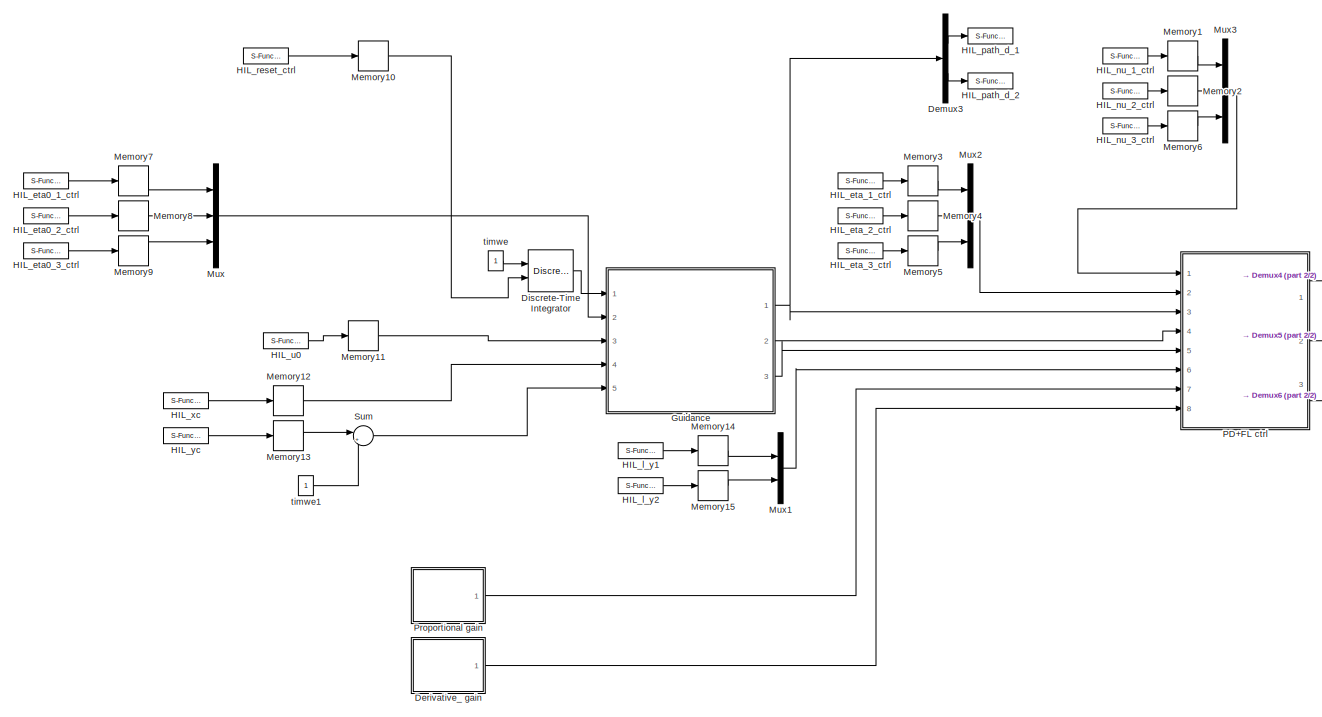
[diagram: root canvas - part 1/2, most of the canvas]
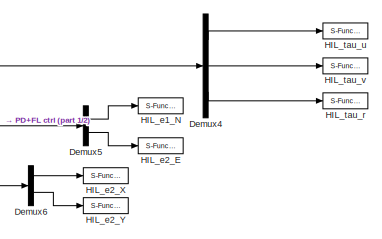
[diagram: root canvas - part 2/2, middle right region]
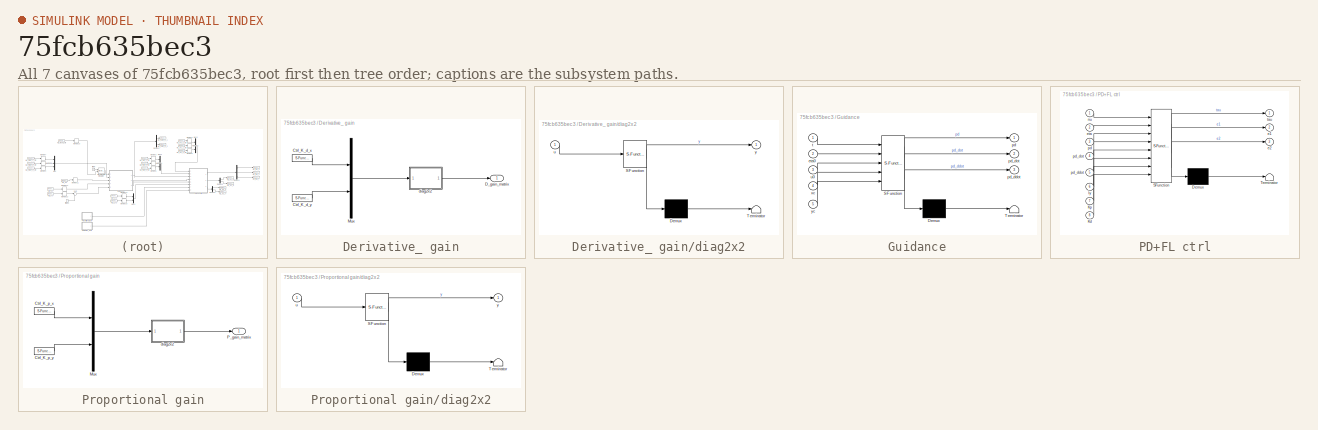
[diagram: thumbnail index - all 7 canvases of the model, root first then tree order]
MODEL slx_75fcb635bec3
KIND model
BLOCK [Demux] Demux3
  DisplayOption = bar
  Outputs = 2
  Ports = [1, 2]
BLOCK [Demux] Demux4
  DisplayOption = bar
  Outputs = 3
  Ports = [1, 3]
BLOCK [Demux] Demux5
  DisplayOption = bar
  Outputs = 2
  Ports = [1, 2]
BLOCK [Demux] Demux6
  DisplayOption = bar
  Outputs = 2
  Ports = [1, 2]
BLOCK [SubSystem] Derivative_ gain
  Ports = [0, 1]
  RequestExecContextInheritance = off
BLOCK [S-Function] Derivative_ gain/Ctrl_K_d_x
  CopyFcn = NIVeriStand_MDL_functions('', 'IO_copy');
  DeleteFcn = NIVeriStand_MDL_functions('', 'IO_delete');
  EnableBusSupport = off
  FunctionName = NIVeriStandIO
  MoveFcn = set_param(gcb, 'Mask', 'on');
  Parameters = width dtype portnum stime stype btype
  Ports = [0, 1]
  Priority = 1
BLOCK [S-Function] Derivative_ gain/Ctrl_K_d_y
  CopyFcn = NIVeriStand_MDL_functions('', 'IO_copy');
  DeleteFcn = NIVeriStand_MDL_functions('', 'IO_delete');
  EnableBusSupport = off
  FunctionName = NIVeriStandIO
  MoveFcn = set_param(gcb, 'Mask', 'on');
  Parameters = width dtype portnum stime stype btype
  Ports = [0, 1]
  Priority = 2
BLOCK [Outport] Derivative_ gain/D_gain_matrix
  IconDisplay = Port number
BLOCK [Mux] Derivative_ gain/Mux
  DisplayOption = bar
  Inputs = 2
  Ports = [2, 1]
BLOCK [SubSystem] Derivative_ gain/diag2x2
  ErrorFcn = Stateflow.Translate.translate
  PermitHierarchicalResolution = ExplicitOnly
  Ports = [1, 1]
  RequestExecContextInheritance = off
  SFBlockType = MATLAB Function
  TreatAsAtomicUnit = on
BLOCK [Demux] Derivative_ gain/diag2x2/ Demux 
  Outputs = 1
  Ports = [1, 1]
BLOCK [S-Function] Derivative_ gain/diag2x2/ SFunction 
  EnableBusSupport = on
  FunctionName = sf_sfun
  PortCounts = [1 2]
  Ports = [1, 2]
  Tag = Stateflow S-Function ctrl_internal_dynamics 7
BLOCK [Terminator] Derivative_ gain/diag2x2/ Terminator 
BLOCK [Inport] Derivative_ gain/diag2x2/u
  IconDisplay = Port number
BLOCK [Outport] Derivative_ gain/diag2x2/y
  IconDisplay = Port number
BLOCK [DiscreteIntegrator] Discrete-Time Integrator
  ExternalReset = rising
  ICPrevOutput = DiscIntNeverNeededParam
  ICPrevScaledInput = DiscIntNeverNeededParam
  Ports = [2, 1]
  SampleTime = 0.01
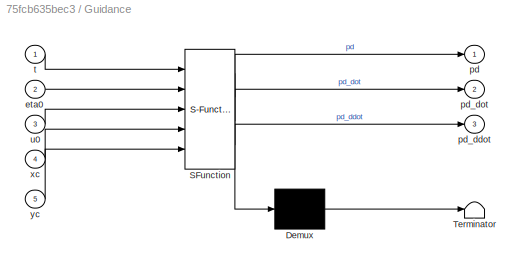
BLOCK [SubSystem] Guidance
  ErrorFcn = Stateflow.Translate.translate
  PermitHierarchicalResolution = ExplicitOnly
  Ports = [5, 3]
  RequestExecContextInheritance = off
  SFBlockType = MATLAB Function
  TreatAsAtomicUnit = on
BLOCK [Demux] Guidance/ Demux 
  Outputs = 1
  Ports = [1, 1]
BLOCK [S-Function] Guidance/ SFunction 
  EnableBusSupport = on
  FunctionName = sf_sfun
  PortCounts = [5 4]
  Ports = [5, 4]
  Tag = Stateflow S-Function ctrl_internal_dynamics 4
BLOCK [Terminator] Guidance/ Terminator 
BLOCK [Inport] Guidance/eta0
  IconDisplay = Port number
  Port = 2
BLOCK [Outport] Guidance/pd
  IconDisplay = Port number
BLOCK [Outport] Guidance/pd_ddot
  IconDisplay = Port number
  Port = 3
BLOCK [Outport] Guidance/pd_dot
  IconDisplay = Port number
  Port = 2
BLOCK [Inport] Guidance/t
  IconDisplay = Port number
BLOCK [Inport] Guidance/u0
  IconDisplay = Port number
  Port = 3
BLOCK [Inport] Guidance/xc
  IconDisplay = Port number
  Port = 4
BLOCK [Inport] Guidance/yc
  IconDisplay = Port number
  Port = 5
BLOCK [S-Function] HIL_e1_N
  CopyFcn = NIVeriStand_MDL_functions('', 'IO_copy');
  DeleteFcn = NIVeriStand_MDL_functions('', 'IO_delete');
  EnableBusSupport = off
  FunctionName = NIVeriStandIO
  MoveFcn = set_param(gcb, 'Mask', 'on');
  Parameters = width dtype portnum stime stype btype
  Ports = [1]
  Priority = 1
BLOCK [S-Function] HIL_e2_E
  CopyFcn = NIVeriStand_MDL_functions('', 'IO_copy');
  DeleteFcn = NIVeriStand_MDL_functions('', 'IO_delete');
  EnableBusSupport = off
  FunctionName = NIVeriStandIO
  MoveFcn = set_param(gcb, 'Mask', 'on');
  Parameters = width dtype portnum stime stype btype
  Ports = [1]
  Priority = 2
BLOCK [S-Function] HIL_e2_X
  CopyFcn = NIVeriStand_MDL_functions('', 'IO_copy');
  DeleteFcn = NIVeriStand_MDL_functions('', 'IO_delete');
  EnableBusSupport = off
  FunctionName = NIVeriStandIO
  MoveFcn = set_param(gcb, 'Mask', 'on');
  Parameters = width dtype portnum stime stype btype
  Ports = [1]
  Priority = 3
BLOCK [S-Function] HIL_e2_Y
  CopyFcn = NIVeriStand_MDL_functions('', 'IO_copy');
  DeleteFcn = NIVeriStand_MDL_functions('', 'IO_delete');
  EnableBusSupport = off
  FunctionName = NIVeriStandIO
  MoveFcn = set_param(gcb, 'Mask', 'on');
  Parameters = width dtype portnum stime stype btype
  Ports = [1]
  Priority = 4
BLOCK [S-Function] HIL_eta0_1_ctrl
  CopyFcn = NIVeriStand_MDL_functions('', 'IO_copy');
  DeleteFcn = NIVeriStand_MDL_functions('', 'IO_delete');
  EnableBusSupport = off
  FunctionName = NIVeriStandIO
  MoveFcn = set_param(gcb, 'Mask', 'on');
  Parameters = width dtype portnum stime stype btype
  Ports = [0, 1]
  Priority = 1
BLOCK [S-Function] HIL_eta0_2_ctrl
  CopyFcn = NIVeriStand_MDL_functions('', 'IO_copy');
  DeleteFcn = NIVeriStand_MDL_functions('', 'IO_delete');
  EnableBusSupport = off
  FunctionName = NIVeriStandIO
  MoveFcn = set_param(gcb, 'Mask', 'on');
  Parameters = width dtype portnum stime stype btype
  Ports = [0, 1]
  Priority = 2
BLOCK [S-Function] HIL_eta0_3_ctrl
  CopyFcn = NIVeriStand_MDL_functions('', 'IO_copy');
  DeleteFcn = NIVeriStand_MDL_functions('', 'IO_delete');
  EnableBusSupport = off
  FunctionName = NIVeriStandIO
  MoveFcn = set_param(gcb, 'Mask', 'on');
  Parameters = width dtype portnum stime stype btype
  Ports = [0, 1]
  Priority = 3
BLOCK [S-Function] HIL_eta_1_ctrl
  CopyFcn = NIVeriStand_MDL_functions('', 'IO_copy');
  DeleteFcn = NIVeriStand_MDL_functions('', 'IO_delete');
  EnableBusSupport = off
  FunctionName = NIVeriStandIO
  MoveFcn = set_param(gcb, 'Mask', 'on');
  Parameters = width dtype portnum stime stype btype
  Ports = [0, 1]
  Priority = 10
BLOCK [S-Function] HIL_eta_2_ctrl
  CopyFcn = NIVeriStand_MDL_functions('', 'IO_copy');
  DeleteFcn = NIVeriStand_MDL_functions('', 'IO_delete');
  EnableBusSupport = off
  FunctionName = NIVeriStandIO
  MoveFcn = set_param(gcb, 'Mask', 'on');
  Parameters = width dtype portnum stime stype btype
  Ports = [0, 1]
  Priority = 11
BLOCK [S-Function] HIL_eta_3_ctrl
  CopyFcn = NIVeriStand_MDL_functions('', 'IO_copy');
  DeleteFcn = NIVeriStand_MDL_functions('', 'IO_delete');
  EnableBusSupport = off
  FunctionName = NIVeriStandIO
  MoveFcn = set_param(gcb, 'Mask', 'on');
  Parameters = width dtype portnum stime stype btype
  Ports = [0, 1]
  Priority = 12
BLOCK [S-Function] HIL_l_y1
  CopyFcn = NIVeriStand_MDL_functions('', 'IO_copy');
  DeleteFcn = NIVeriStand_MDL_functions('', 'IO_delete');
  EnableBusSupport = off
  FunctionName = NIVeriStandIO
  MoveFcn = set_param(gcb, 'Mask', 'on');
  Parameters = width dtype portnum stime stype btype
  Ports = [0, 1]
  Priority = 5
BLOCK [S-Function] HIL_l_y2
  CopyFcn = NIVeriStand_MDL_functions('', 'IO_copy');
  DeleteFcn = NIVeriStand_MDL_functions('', 'IO_delete');
  EnableBusSupport = off
  FunctionName = NIVeriStandIO
  MoveFcn = set_param(gcb, 'Mask', 'on');
  Parameters = width dtype portnum stime stype btype
  Ports = [0, 1]
  Priority = 6
BLOCK [S-Function] HIL_nu_1_ctrl
  CopyFcn = NIVeriStand_MDL_functions('', 'IO_copy');
  DeleteFcn = NIVeriStand_MDL_functions('', 'IO_delete');
  EnableBusSupport = off
  FunctionName = NIVeriStandIO
  MoveFcn = set_param(gcb, 'Mask', 'on');
  Parameters = width dtype portnum stime stype btype
  Ports = [0, 1]
  Priority = 13
BLOCK [S-Function] HIL_nu_2_ctrl
  CopyFcn = NIVeriStand_MDL_functions('', 'IO_copy');
  DeleteFcn = NIVeriStand_MDL_functions('', 'IO_delete');
  EnableBusSupport = off
  FunctionName = NIVeriStandIO
  MoveFcn = set_param(gcb, 'Mask', 'on');
  Parameters = width dtype portnum stime stype btype
  Ports = [0, 1]
  Priority = 14
BLOCK [S-Function] HIL_nu_3_ctrl
  CopyFcn = NIVeriStand_MDL_functions('', 'IO_copy');
  DeleteFcn = NIVeriStand_MDL_functions('', 'IO_delete');
  EnableBusSupport = off
  FunctionName = NIVeriStandIO
  MoveFcn = set_param(gcb, 'Mask', 'on');
  Parameters = width dtype portnum stime stype btype
  Ports = [0, 1]
  Priority = 15
BLOCK [S-Function] HIL_path_d_1
  CopyFcn = NIVeriStand_MDL_functions('', 'IO_copy');
  DeleteFcn = NIVeriStand_MDL_functions('', 'IO_delete');
  EnableBusSupport = off
  FunctionName = NIVeriStandIO
  MoveFcn = set_param(gcb, 'Mask', 'on');
  Parameters = width dtype portnum stime stype btype
  Ports = [1]
  Priority = 5
BLOCK [S-Function] HIL_path_d_2
  CopyFcn = NIVeriStand_MDL_functions('', 'IO_copy');
  DeleteFcn = NIVeriStand_MDL_functions('', 'IO_delete');
  EnableBusSupport = off
  FunctionName = NIVeriStandIO
  MoveFcn = set_param(gcb, 'Mask', 'on');
  Parameters = width dtype portnum stime stype btype
  Ports = [1]
  Priority = 6
BLOCK [S-Function] HIL_reset_ctrl
  CopyFcn = NIVeriStand_MDL_functions('', 'IO_copy');
  DeleteFcn = NIVeriStand_MDL_functions('', 'IO_delete');
  EnableBusSupport = off
  FunctionName = NIVeriStandIO
  MoveFcn = set_param(gcb, 'Mask', 'on');
  Parameters = width dtype portnum stime stype btype
  Ports = [0, 1]
  Priority = 7
BLOCK [S-Function] HIL_tau_r
  CopyFcn = NIVeriStand_MDL_functions('', 'IO_copy');
  DeleteFcn = NIVeriStand_MDL_functions('', 'IO_delete');
  EnableBusSupport = off
  FunctionName = NIVeriStandIO
  MoveFcn = set_param(gcb, 'Mask', 'on');
  Parameters = width dtype portnum stime stype btype
  Ports = [1]
  Priority = 7
BLOCK [S-Function] HIL_tau_u
  CopyFcn = NIVeriStand_MDL_functions('', 'IO_copy');
  DeleteFcn = NIVeriStand_MDL_functions('', 'IO_delete');
  EnableBusSupport = off
  FunctionName = NIVeriStandIO
  MoveFcn = set_param(gcb, 'Mask', 'on');
  Parameters = width dtype portnum stime stype btype
  Ports = [1]
  Priority = 8
BLOCK [S-Function] HIL_tau_v
  CopyFcn = NIVeriStand_MDL_functions('', 'IO_copy');
  DeleteFcn = NIVeriStand_MDL_functions('', 'IO_delete');
  EnableBusSupport = off
  FunctionName = NIVeriStandIO
  MoveFcn = set_param(gcb, 'Mask', 'on');
  Parameters = width dtype portnum stime stype btype
  Ports = [1]
  Priority = 9
BLOCK [S-Function] HIL_u0
  CopyFcn = NIVeriStand_MDL_functions('', 'IO_copy');
  DeleteFcn = NIVeriStand_MDL_functions('', 'IO_delete');
  EnableBusSupport = off
  FunctionName = NIVeriStandIO
  MoveFcn = set_param(gcb, 'Mask', 'on');
  Parameters = width dtype portnum stime stype btype
  Ports = [0, 1]
  Priority = 4
BLOCK [S-Function] HIL_xc
  CopyFcn = NIVeriStand_MDL_functions('', 'IO_copy');
  DeleteFcn = NIVeriStand_MDL_functions('', 'IO_delete');
  EnableBusSupport = off
  FunctionName = NIVeriStandIO
  MoveFcn = set_param(gcb, 'Mask', 'on');
  Parameters = width dtype portnum stime stype btype
  Ports = [0, 1]
  Priority = 8
BLOCK [S-Function] HIL_yc
  CopyFcn = NIVeriStand_MDL_functions('', 'IO_copy');
  DeleteFcn = NIVeriStand_MDL_functions('', 'IO_delete');
  EnableBusSupport = off
  FunctionName = NIVeriStandIO
  MoveFcn = set_param(gcb, 'Mask', 'on');
  Parameters = width dtype portnum stime stype btype
  Ports = [0, 1]
  Priority = 9
BLOCK [Memory] Memory1
BLOCK [Memory] Memory10
BLOCK [Memory] Memory11
BLOCK [Memory] Memory12
BLOCK [Memory] Memory13
BLOCK [Memory] Memory14
BLOCK [Memory] Memory15
BLOCK [Memory] Memory2
BLOCK [Memory] Memory3
BLOCK [Memory] Memory4
BLOCK [Memory] Memory5
BLOCK [Memory] Memory6
BLOCK [Memory] Memory7
BLOCK [Memory] Memory8
BLOCK [Memory] Memory9
BLOCK [Mux] Mux
  DisplayOption = bar
  Inputs = 3
  Ports = [3, 1]
BLOCK [Mux] Mux1
  DisplayOption = bar
  Inputs = 2
  Ports = [2, 1]
BLOCK [Mux] Mux2
  DisplayOption = bar
  Inputs = 3
  Ports = [3, 1]
BLOCK [Mux] Mux3
  DisplayOption = bar
  Inputs = 3
  Ports = [3, 1]
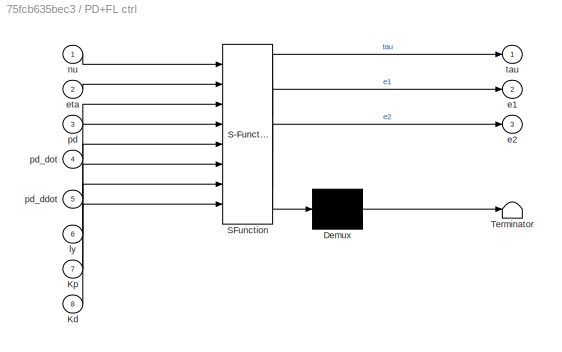
BLOCK [SubSystem] PD+FL ctrl
  ErrorFcn = Stateflow.Translate.translate
  PermitHierarchicalResolution = ExplicitOnly
  Ports = [8, 3]
  RequestExecContextInheritance = off
  SFBlockType = MATLAB Function
  TreatAsAtomicUnit = on
BLOCK [Demux] PD+FL ctrl/ Demux 
  Outputs = 1
  Ports = [1, 1]
BLOCK [S-Function] PD+FL ctrl/ SFunction 
  EnableBusSupport = on
  FunctionName = sf_sfun
  PortCounts = [8 4]
  Ports = [8, 4]
  Tag = Stateflow S-Function ctrl_internal_dynamics 3
BLOCK [Terminator] PD+FL ctrl/ Terminator 
BLOCK [Inport] PD+FL ctrl/Kd
  IconDisplay = Port number
  Port = 8
BLOCK [Inport] PD+FL ctrl/Kp
  IconDisplay = Port number
  Port = 7
BLOCK [Outport] PD+FL ctrl/e1
  IconDisplay = Port number
  Port = 2
BLOCK [Outport] PD+FL ctrl/e2
  IconDisplay = Port number
  Port = 3
BLOCK [Inport] PD+FL ctrl/eta
  IconDisplay = Port number
  Port = 2
BLOCK [Inport] PD+FL ctrl/ly
  IconDisplay = Port number
  Port = 6
BLOCK [Inport] PD+FL ctrl/nu
  IconDisplay = Port number
BLOCK [Inport] PD+FL ctrl/pd
  IconDisplay = Port number
  Port = 3
BLOCK [Inport] PD+FL ctrl/pd_ddot
  IconDisplay = Port number
  Port = 5
BLOCK [Inport] PD+FL ctrl/pd_dot
  IconDisplay = Port number
  Port = 4
BLOCK [Outport] PD+FL ctrl/tau
  IconDisplay = Port number
BLOCK [SubSystem] Proportional gain
  Ports = [0, 1]
  RequestExecContextInheritance = off
BLOCK [S-Function] Proportional gain/Ctrl_K_p_x
  CopyFcn = NIVeriStand_MDL_functions('', 'IO_copy');
  DeleteFcn = NIVeriStand_MDL_functions('', 'IO_delete');
  EnableBusSupport = off
  FunctionName = NIVeriStandIO
  MoveFcn = set_param(gcb, 'Mask', 'on');
  Parameters = width dtype portnum stime stype btype
  Ports = [0, 1]
  Priority = 1
BLOCK [S-Function] Proportional gain/Ctrl_K_p_y
  CopyFcn = NIVeriStand_MDL_functions('', 'IO_copy');
  DeleteFcn = NIVeriStand_MDL_functions('', 'IO_delete');
  EnableBusSupport = off
  FunctionName = NIVeriStandIO
  MoveFcn = set_param(gcb, 'Mask', 'on');
  Parameters = width dtype portnum stime stype btype
  Ports = [0, 1]
  Priority = 2
BLOCK [Mux] Proportional gain/Mux
  DisplayOption = bar
  Inputs = 2
  Ports = [2, 1]
BLOCK [Outport] Proportional gain/P_gain_matrix
  IconDisplay = Port number
BLOCK [SubSystem] Proportional gain/diag2x2
  ErrorFcn = Stateflow.Translate.translate
  PermitHierarchicalResolution = ExplicitOnly
  Ports = [1, 1]
  RequestExecContextInheritance = off
  SFBlockType = MATLAB Function
  TreatAsAtomicUnit = on
BLOCK [Demux] Proportional gain/diag2x2/ Demux 
  Outputs = 1
  Ports = [1, 1]
BLOCK [S-Function] Proportional gain/diag2x2/ SFunction 
  EnableBusSupport = on
  FunctionName = sf_sfun
  PortCounts = [1 2]
  Ports = [1, 2]
  Tag = Stateflow S-Function ctrl_internal_dynamics 5
BLOCK [Terminator] Proportional gain/diag2x2/ Terminator 
BLOCK [Inport] Proportional gain/diag2x2/u
  IconDisplay = Port number
BLOCK [Outport] Proportional gain/diag2x2/y
  IconDisplay = Port number
BLOCK [Sum] Sum
  IconShape = round
  InputSameDT = off
  Inputs = |++
  OutDataTypeStr = Inherit: Inherit via internal rule
  Ports = [2, 1]
  SaturateOnIntegerOverflow = off
BLOCK [Constant] timwe
BLOCK [Constant] timwe1
LINE Demux3:1 -> HIL_path_d_1:1
LINE Demux3:2 -> HIL_path_d_2:1
LINE Demux4:1 -> HIL_tau_u:1
LINE Demux4:2 -> HIL_tau_v:1
LINE Demux4:3 -> HIL_tau_r:1
LINE Demux5:1 -> HIL_e1_N:1
LINE Demux5:2 -> HIL_e2_E:1
LINE Demux6:1 -> HIL_e2_X:1
LINE Demux6:2 -> HIL_e2_Y:1
LINE Derivative_ gain/Ctrl_K_d_x:1 -> Derivative_ gain/Mux:1
LINE Derivative_ gain/Ctrl_K_d_y:1 -> Derivative_ gain/Mux:2
LINE Derivative_ gain/Mux:1 -> Derivative_ gain/diag2x2:1
LINE Derivative_ gain/diag2x2:1 -> Derivative_ gain/D_gain_matrix:1
LINE Derivative_ gain:1 -> PD+FL ctrl:8
LINE Discrete-Time Integrator:1 -> Guidance:1
NET Guidance:1 -> Demux3:1, PD+FL ctrl:3
LINE Guidance:2 -> PD+FL ctrl:4
LINE Guidance:3 -> PD+FL ctrl:5
LINE HIL_eta0_1_ctrl:1 -> Memory7:1
LINE HIL_eta0_2_ctrl:1 -> Memory8:1
LINE HIL_eta0_3_ctrl:1 -> Memory9:1
LINE HIL_eta_1_ctrl:1 -> Memory3:1
LINE HIL_eta_2_ctrl:1 -> Memory4:1
LINE HIL_eta_3_ctrl:1 -> Memory5:1
LINE HIL_l_y1:1 -> Memory14:1
LINE HIL_l_y2:1 -> Memory15:1
LINE HIL_nu_1_ctrl:1 -> Memory1:1
LINE HIL_nu_2_ctrl:1 -> Memory2:1
LINE HIL_nu_3_ctrl:1 -> Memory6:1
LINE HIL_reset_ctrl:1 -> Memory10:1
LINE HIL_u0:1 -> Memory11:1
LINE HIL_xc:1 -> Memory12:1
LINE HIL_yc:1 -> Memory13:1
LINE Memory10:1 -> Discrete-Time Integrator:2
LINE Memory11:1 -> Guidance:3
LINE Memory12:1 -> Guidance:4
LINE Memory13:1 -> Sum:1
LINE Memory14:1 -> Mux1:1
LINE Memory15:1 -> Mux1:2
LINE Memory1:1 -> Mux3:1
LINE Memory2:1 -> Mux3:2
LINE Memory3:1 -> Mux2:1
LINE Memory4:1 -> Mux2:2
LINE Memory5:1 -> Mux2:3
LINE Memory6:1 -> Mux3:3
LINE Memory7:1 -> Mux:1
LINE Memory8:1 -> Mux:2
LINE Memory9:1 -> Mux:3
LINE Mux1:1 -> PD+FL ctrl:6
LINE Mux2:1 -> PD+FL ctrl:2
LINE Mux3:1 -> PD+FL ctrl:1
LINE Mux:1 -> Guidance:2
LINE PD+FL ctrl:1 -> Demux4:1
LINE PD+FL ctrl:2 -> Demux5:1
LINE PD+FL ctrl:3 -> Demux6:1
LINE Proportional gain/Ctrl_K_p_x:1 -> Proportional gain/Mux:1
LINE Proportional gain/Ctrl_K_p_y:1 -> Proportional gain/Mux:2
LINE Proportional gain/Mux:1 -> Proportional gain/diag2x2:1
LINE Proportional gain/diag2x2:1 -> Proportional gain/P_gain_matrix:1
LINE Proportional gain:1 -> PD+FL ctrl:7
LINE Sum:1 -> Guidance:5
LINE timwe1:1 -> Sum:2
LINE timwe:1 -> Discrete-Time Integrator:1
note: NET lines group one-source signal fan-out (src -> all destinations, sorted); 1:1 wires keep LINE
